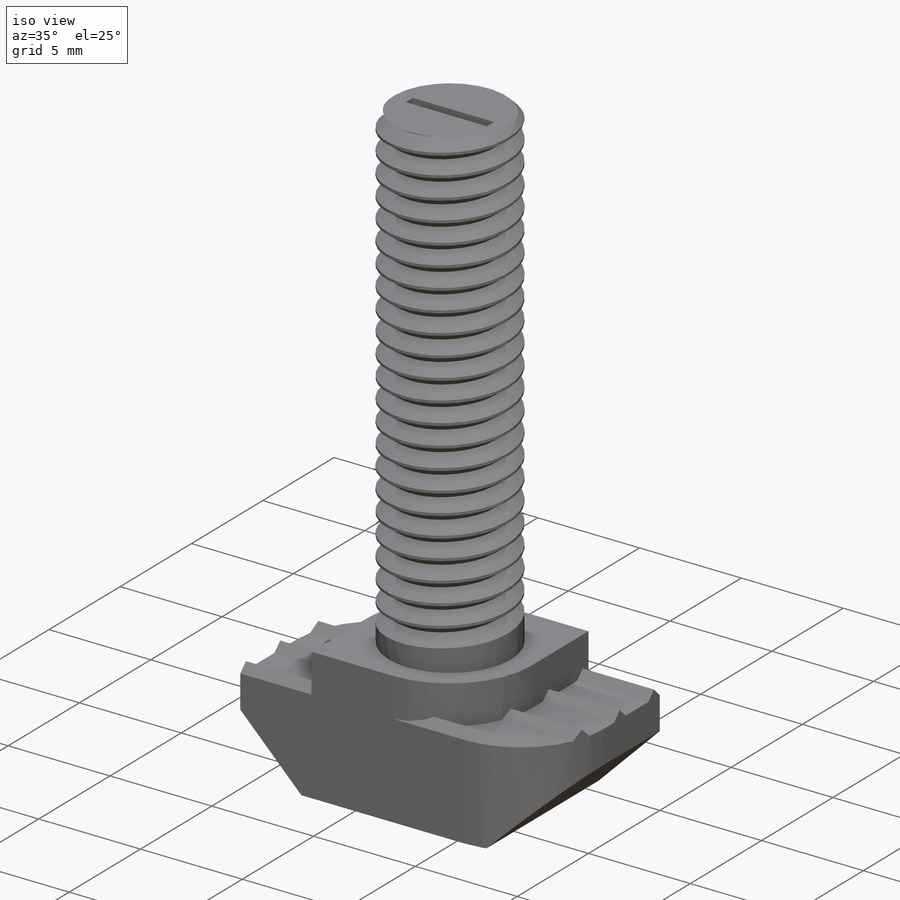
[diagram: iso view]
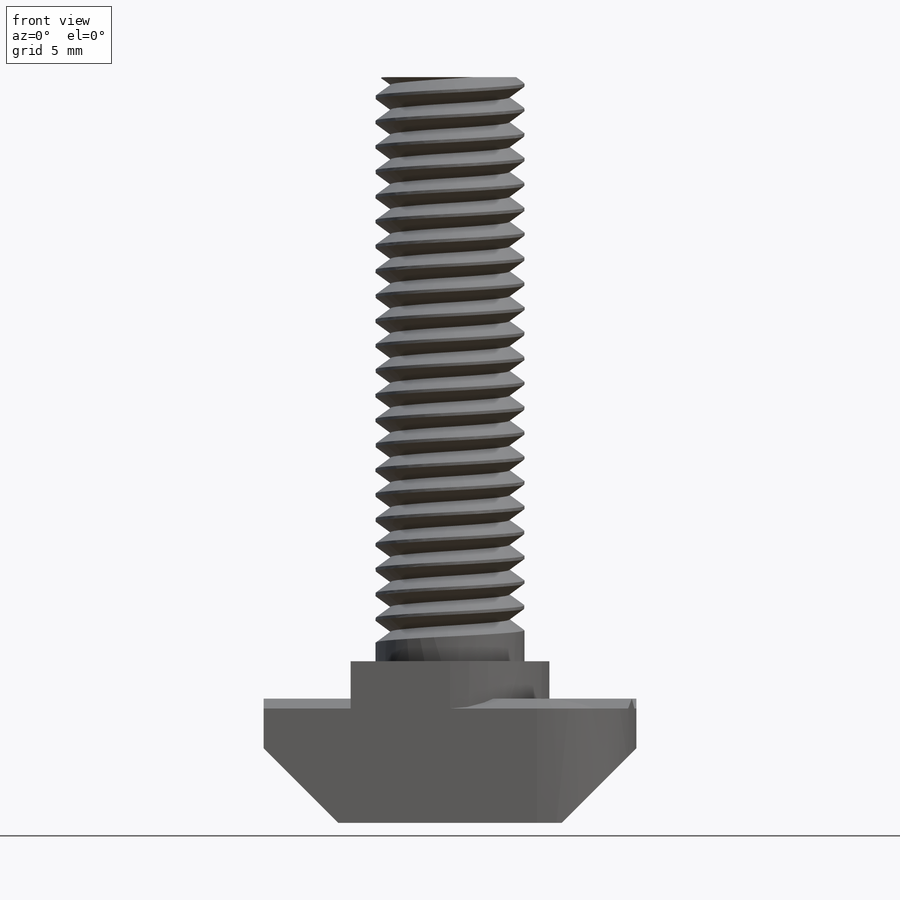
[diagram: front view]
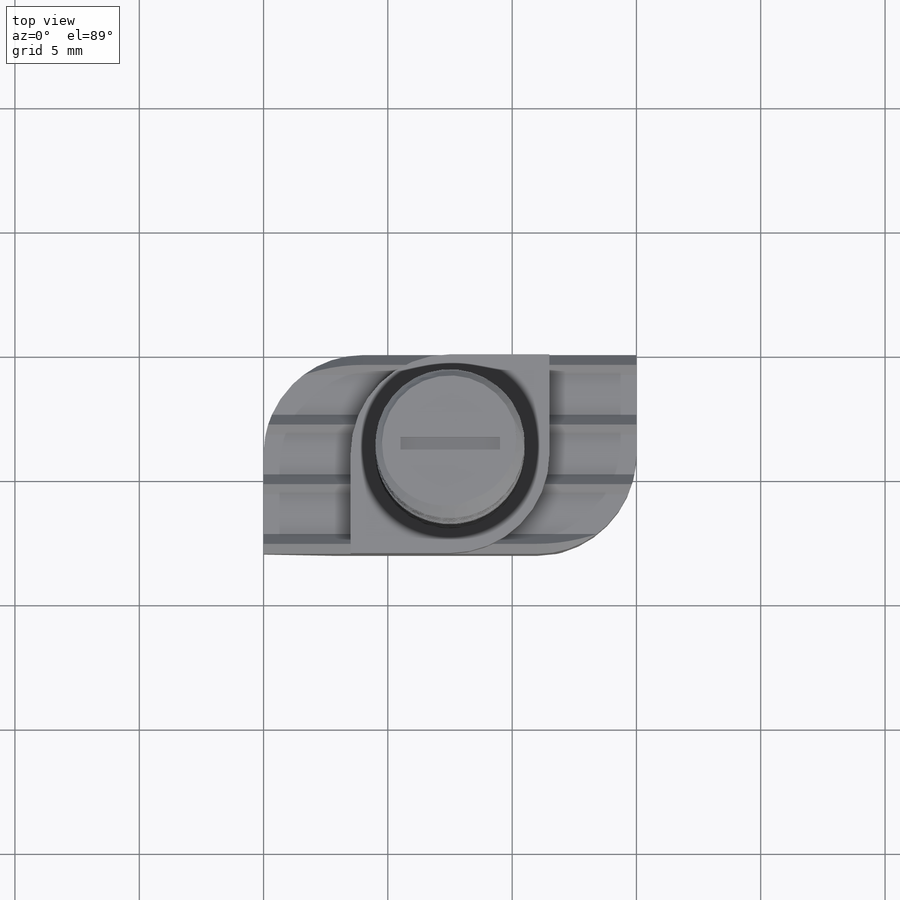
[diagram: top view]
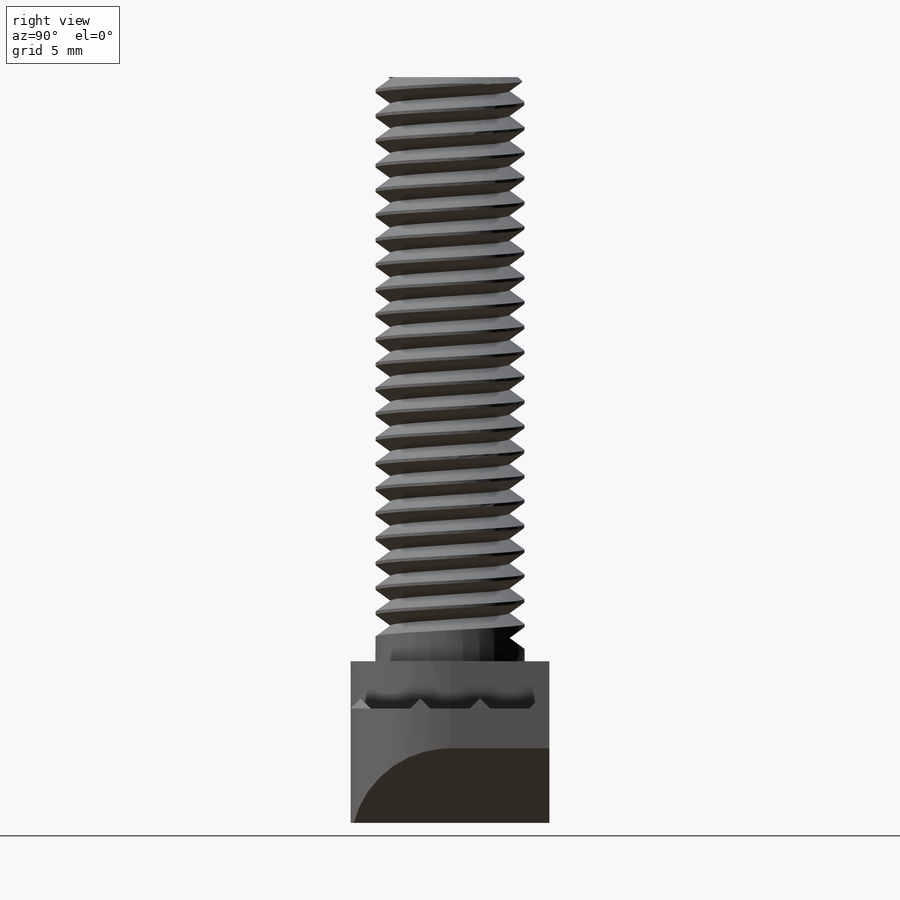
[diagram: right view]
SOLIDWORKS PART (.sldprt)
format: sldprt  version: not decoded by parser v0  size: 8,847,872 bytes
history: native  units: mm
features: sketch x11, cut_extrude x6, plane x5, extrude x3, chamfer x2, material x1, helix x1, sweep x1 (+12 scaffold rows collapsed)
feature tree (42):
  scaffold x12  (default folders/planes/origin — collapsed)
  material  "材质 <未指定>"
  plane  "前视基准面"
  plane  "上视基准面"
  plane  "右视基准面"
  sketch  "草图1"  dims[c1.D1=15.0mm c1.D2=5.0mm c1.D3=3.0mm c1.D4=3.0mm c1.D5=9.0mm c1.D6=3.0mm c2.D1=15.0mm]
  extrude  "拉伸1"  Depth=8mm
  sketch  "草图2"  dims[c1.D3=4.0mm c1.D5=4.0mm c1.D8=4.0mm c1.D1=3.5mm c1.D2=3.5mm c1.D4=4.0mm c2.D5=4.0mm c2.D3=4.0mm c2.D4=4.0mm c2.D6=4.0mm c2.D7=4.0mm c2.D9=4.0mm c2.D10=4.0mm c2.D11=4.0mm c2.D12=4.0mm c2.D13=15.0mm]
  extrude  "拉伸2"  Depth=1.5mm
  sketch  "草图3"  dims[c1.D5=4.0mm c1.D6=4.0mm c1.D1=4.0mm c1.D2=4.0mm c1.D3=4.0mm c1.D4=4.0mm c1.D7=0.5mm c1.D8=0.5mm c1.D9=2.0mm c1.D10=0.5mm c1.D11=2.0mm c1.D12=2.0mm c1.D13=0.5mm c2.D7=4.0mm c2.D8=4.0mm c2.D9=4.0mm c2.D10=4.0mm]
  cut_extrude  "切除-拉伸5"  [1 undecoded]
  cut_extrude  "切除-拉伸8"  [1 undecoded]
  sketch  "草图3<6>"
  sketch  "草图5"  dims[c1.D1=0.5mm c1.D2=2.0mm c1.D3=0.5mm c1.D4=2.0mm c1.D5=0.5mm c1.D6=2.0mm c1.D7=0.5mm c2.D2=2.0mm c2.D3=0.5mm c2.D7=~9.063669mm c2.D8=~5.563508mm c2.D9=~7.292062mm c2.D10=~3.791901mm c2.D11=~7.127178mm c2.D12=~3.627017mm c2.D13=~7.000072mm c2.D14=3.5mm c2.D15=~7.00009mm c2.D16=3.5mm c2.D17=~7.000161mm c2.D18=3.5mm c2.D1=0.8mm c3.D2=0.8mm c3.D3=0.8mm c3.D4=0.8mm c3.D5=~9.063669mm c3.D6=~5.563508mm c3.D7=1.6mm c3.D8=1.6mm c3.D9=~9.063669mm c3.D10=~5.563508mm c3.D11=~9.063669mm c3.D12=~5.563508mm c3.D13=~9.06358mm c3.D14=~5.563508mm c3.D15=~9.063598mm c3.D16=~5.563508mm c3.D17=~9.063669mm c3.D18=~5.563508mm]
  cut_extrude  "切除-拉伸10"  Depth=0.4mm
  sketch  "草图6"  dims[c1.D1=0.5mm c1.D2=0.5mm c1.D3=0.5mm c1.D4=0.5mm c1.D5=2.0mm c1.D6=2.0mm c1.D7=~5.019388mm c1.D8=3.5mm c1.D9=~5.019388mm c1.D10=3.5mm c1.D11=~5.019388mm c1.D12=3.5mm c1.D13=~5.146405mm c1.D14=~3.627017mm c1.D15=~5.311289mm c1.D16=~3.791901mm c1.D17=~7.082896mm c1.D18=~5.563508mm c2.D1=0.8mm c2.D2=0.8mm c2.D3=0.8mm c2.D4=0.8mm c2.D5=~7.082896mm c2.D6=~5.563508mm c2.D7=1.6mm c2.D8=1.6mm c2.D9=~7.082896mm c2.D10=~5.563508mm c2.D11=~7.082896mm c2.D12=~5.563508mm c2.D13=~7.082896mm c2.D14=~5.563508mm c2.D15=~7.082896mm c2.D16=~5.563508mm c2.D17=~7.082896mm c2.D18=~5.563508mm]
  cut_extrude  "切除-拉伸11"  Depth=0.4mm
  sketch  "草图7"  dims[c1.D1=6.0mm c1.D2=4.0mm c1.D3=4.0mm c2.D2=4.0mm]
  extrude  "拉伸3"  Depth=23.5mm
  chamfer  "倒角3"  Distance=0.26mm Angle=45deg
  plane  "基准面5"  Offset=25.3mm
  sketch  "草图18"  dims[D1=6.0mm]
  helix  "螺旋线/涡状线2"  Pitch=23mm
  plane  "基准面6"  Offset=7.5mm
  sketch  "草图19"  dims[c1.D1=0.4mm c1.D2=0.5mm c1.D3=0.5mm c1.D4=14.5mm c1.D5=3.0mm c2.D2=0.4mm c2.D3=0.2mm c2.D1=0.6mm c3.D2=3.0mm c3.D3=0.875mm c3.D5=0.4375mm c3.D4=23.0625mm c3.D1=23.5mm c4.D2=3.0mm c4.D3=0.875mm c4.D4=0.6mm c4.D5=0.4375mm]
  sweep  "切除-扫描12"
  sketch  "草图21"  dims[D1=1.0mm]
  cut_extrude  "切除-拉伸14"  [1 undecoded]
  sketch  "草图22"  dims[c1.D1=0.4mm c1.D2=0.4mm c1.D3=3.5mm c1.D4=3.5mm c1.D5=0.5mm c1.D6=0.8mm c2.D1=0.25mm c2.D2=0.25mm c2.D3=4.0mm c2.D4=2.0mm c2.D6=4.0mm]
  cut_extrude  "切除-拉伸15"  Depth=0.5mm
  chamfer  "倒角4"  Distance=0.4mm Angle=45deg
decode coverage: 19 of 24 modeling features carry decoded parameters
note: ~ marks probable driven/reference dimensions
note: 3 parameter values undecoded
summary: no parameter record found for 3 features
note: suppression state not decoded; provenance and decode notes live in map.json
